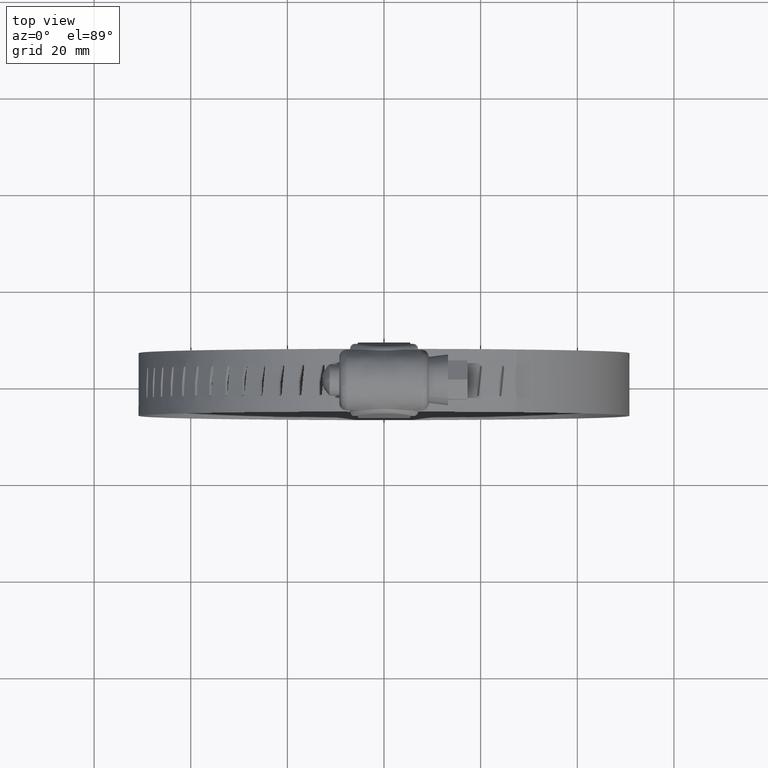
[diagram: clean part render]
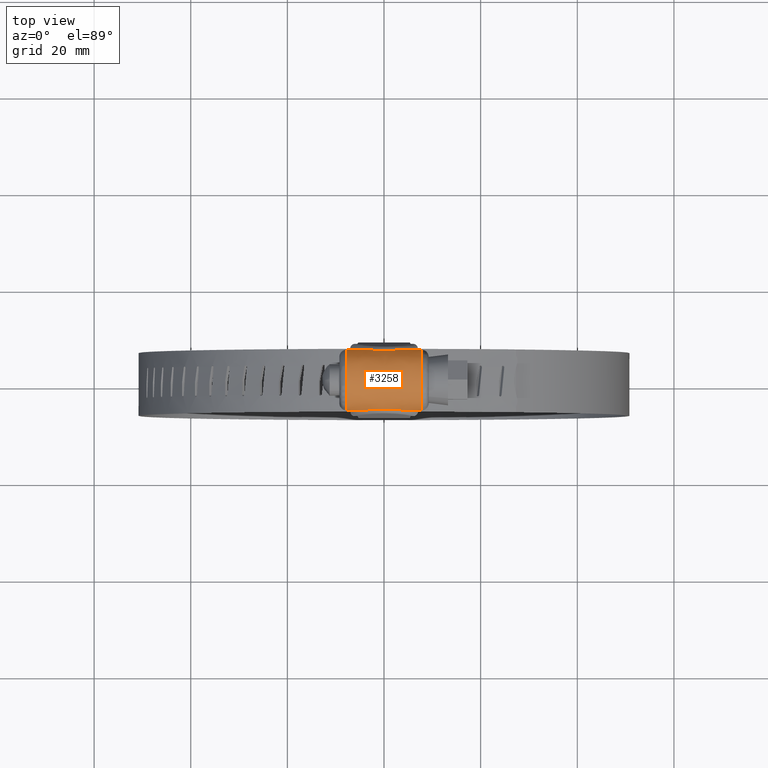
[diagram: same view with one face highlighted and labeled with its STEP entity id]
A machine part, top view. The second image highlights one B-rep face of the part: STEP entity #3258.
In plain terms, the highlighted face is a freeform B-spline surface patch.
Its self-contained STEP definition (entity closure, byte-faithful):
#1588=CARTESIAN_POINT('',(-3.766983245140355,-6.249999633170980,16.577121365332999));
#1589=VERTEX_POINT('',#1588);
#1699=CARTESIAN_POINT('',(3.766983245140355,-6.249999633170980,16.577121365332999));
#1700=VERTEX_POINT('',#1699);
#1708=CARTESIAN_POINT('',(-3.766983245140355,-6.249999633170980,16.577121365332999));
#1709=CARTESIAN_POINT('',(-3.478831496909463,-6.229233364205876,16.739128154655241));
#1710=CARTESIAN_POINT('',(-3.183300914378316,-6.204570008767342,16.882148632117168));
#1711=CARTESIAN_POINT('',(-2.576808892005547,-6.155228093785371,17.130036402120751));
#1712=CARTESIAN_POINT('',(-2.265836634976381,-6.130547265610534,17.234876518080021));
#1713=CARTESIAN_POINT('',(-1.866693869858923,-6.103751019367197,17.340919599546389));
#1714=CARTESIAN_POINT('',(-1.786486061357972,-6.098601892761600,17.360832235081901));
#1715=CARTESIAN_POINT('',(-1.626024433981459,-6.088846631766009,17.397907521513719));
#1716=CARTESIAN_POINT('',(-1.545665445436081,-6.084233341677489,17.415098594033861));
#1717=CARTESIAN_POINT('',(-1.304205280765513,-6.071283367227001,17.462673344400940));
#1718=CARTESIAN_POINT('',(-1.142721123573348,-6.063841070201703,17.489062200122419));
#1719=CARTESIAN_POINT('',(-0.656740159557208,-6.045693866015511,17.552452619586020));
#1720=CARTESIAN_POINT('',(-0.330719706065374,-6.039235105378521,17.573749912531952));
#1721=CARTESIAN_POINT('',(0.161419786626403,-6.039184386857341,17.573920279852860));
#1722=CARTESIAN_POINT('',(0.325985564198005,-6.040757096750824,17.568663909435760));
#1723=CARTESIAN_POINT('',(0.573631993009526,-6.045493593546023,17.552599085312352));
#1724=CARTESIAN_POINT('',(0.656241352251390,-6.047467871330164,17.545878086249040));
#1725=CARTESIAN_POINT('',(0.820475667525163,-6.052146371881373,17.529813216404978));
#1726=CARTESIAN_POINT('',(0.902253417529042,-6.054853191231874,17.520460500731989));
#1727=CARTESIAN_POINT('',(1.309472620170547,-6.070102513587345,17.467179843144940));
#1728=CARTESIAN_POINT('',(1.629917328613110,-6.087864840067938,17.403768142886481));
#1729=CARTESIAN_POINT('',(2.260627271324118,-6.130187882777850,17.236317853900928));
#1730=CARTESIAN_POINT('',(2.570888658853245,-6.154751397064583,17.132263968381999));
#1731=CARTESIAN_POINT('',(3.028839962946760,-6.192001216301294,16.945374784512900));
#1732=CARTESIAN_POINT('',(3.179777303179230,-6.204428908061730,16.878107182095970));
#1733=CARTESIAN_POINT('',(3.476686108309584,-6.228226204638982,16.734530296358798));
#1734=CARTESIAN_POINT('',(3.622917516897374,-6.239617229855899,16.658119055673680));
#1735=CARTESIAN_POINT('',(3.766983245140355,-6.249999633170980,16.577121365332999));
#1736=B_SPLINE_CURVE_WITH_KNOTS('',3,(#1708,#1709,#1710,#1711,#1712,#1713,#1714,#1715,#1716,#1717,#1718,#1719,#1720,#1721,#1722,#1723,#1724,#1725,#1726,#1727,#1728,#1729,#1730,#1731,#1732,#1733,#1734,#1735),.UNSPECIFIED.,.F.,.U.,(4,2,2,2,2,2,2,2,2,2,2,2,2,4),(0.000000039906754,0.125000000000001,0.250000000000001,0.281250000000001,0.312500000000001,0.375000000000001,0.500000000000001,0.562500000000001,0.593750000000001,0.625000000000000,0.750000000000000,0.875000000000000,0.937500000000000,0.999999982435041),.UNSPECIFIED.);
#1737=EDGE_CURVE('',#1589,#1700,#1736,.T.);
#1928=CARTESIAN_POINT('',(-3.767731017053410,6.249999633170980,16.577121365332999));
#1929=VERTEX_POINT('',#1928);
#1937=CARTESIAN_POINT('',(3.767731017053410,6.249999633170980,16.577121365332999));
#1938=VERTEX_POINT('',#1937);
#1939=CARTESIAN_POINT('',(3.767731017053410,6.249999633170980,16.577121365332999));
#1940=CARTESIAN_POINT('',(3.479497733507518,6.229237709105721,16.739094258291651));
#1941=CARTESIAN_POINT('',(3.183884050679524,6.204583222070062,16.882071151559519));
#1942=CARTESIAN_POINT('',(2.577243934754033,6.155257050299552,17.129902017543969));
#1943=CARTESIAN_POINT('',(2.266206147951572,6.130582696073145,17.234727400421061));
#1944=CARTESIAN_POINT('',(1.866991587071622,6.103790234875439,17.340766625409820));
#1945=CARTESIAN_POINT('',(1.786771470837745,6.098641773924828,17.360678763914390));
#1946=CARTESIAN_POINT('',(1.626284023453253,6.088887352445290,17.397754646818960));
#1947=CARTESIAN_POINT('',(1.545912167912042,6.084274283725710,17.414946625872581));
#1948=CARTESIAN_POINT('',(1.304413467685331,6.071324521135703,17.462525250646319));
#1949=CARTESIAN_POINT('',(1.142903704963588,6.063881763437935,17.488918202284239));
#1950=CARTESIAN_POINT('',(0.656845720759579,6.045732683460419,17.552320710697689));
#1951=CARTESIAN_POINT('',(0.330773580215899,6.039272260056391,17.573625094178219));
#1952=CARTESIAN_POINT('',(-0.161444854682112,6.039221514861135,17.573795563976041));
#1953=CARTESIAN_POINT('',(-0.326037165918512,6.040794574774885,17.568537633646770));
#1954=CARTESIAN_POINT('',(-0.573723678317318,6.045531948734165,17.552468569044731));
#1955=CARTESIAN_POINT('',(-0.656346915220894,6.047506583847865,17.545745815254921));
#1956=CARTESIAN_POINT('',(-0.820608736505639,6.052185828560140,17.529677062264259));
#1957=CARTESIAN_POINT('',(-0.902400225254582,6.054893035526168,17.520322214310770));
#1958=CARTESIAN_POINT('',(-1.309688241338812,6.070144131077192,17.467030690373669));
#1959=CARTESIAN_POINT('',(-1.630188360697988,6.087907219618561,17.403609516303838));
#1960=CARTESIAN_POINT('',(-2.261015828429809,6.130224851233542,17.236162525183840));
#1961=CARTESIAN_POINT('',(-2.571339628588592,6.154781890041164,17.132122576332680));
#1962=CARTESIAN_POINT('',(-3.029391561703454,6.192018955972971,16.945279975485011));
#1963=CARTESIAN_POINT('',(-3.180366883374803,6.204442304778198,16.878030458831791));
#1964=CARTESIAN_POINT('',(-3.477353567144340,6.228231820699066,16.734492306269210));
#1965=CARTESIAN_POINT('',(-3.623625442391634,6.239619468304403,16.658101592606808));
#1966=CARTESIAN_POINT('',(-3.767731017053410,6.249999633170980,16.577121365332999));
#1967=B_SPLINE_CURVE_WITH_KNOTS('',3,(#1939,#1940,#1941,#1942,#1943,#1944,#1945,#1946,#1947,#1948,#1949,#1950,#1951,#1952,#1953,#1954,#1955,#1956,#1957,#1958,#1959,#1960,#1961,#1962,#1963,#1964,#1965,#1966),.UNSPECIFIED.,.F.,.U.,(4,2,2,2,2,2,2,2,2,2,2,2,2,4),(0.000000039879375,0.125000000000000,0.250000000000001,0.281250000000000,0.312500000000000,0.375000000000000,0.500000000000000,0.562500000000000,0.593749999999999,0.624999999999999,0.749999999999999,0.875000000000000,0.937500000000000,0.999999982445228),.UNSPECIFIED.);
#1968=EDGE_CURVE('',#1938,#1929,#1967,.T.);
#2472=CARTESIAN_POINT('',(7.750000000000000,6.249999633170980,16.577121365332999));
#2473=VERTEX_POINT('',#2472);
#2530=CARTESIAN_POINT('',(7.750000000000000,-6.249999633170980,16.577121365332999));
#2531=VERTEX_POINT('',#2530);
#2564=CARTESIAN_POINT('',(7.750000000000000,-6.249999633170980,16.577121365332999));
#2565=CARTESIAN_POINT('',(7.749999999999991,-6.174979329673651,17.164473482041981));
#2566=CARTESIAN_POINT('',(7.750000000000017,-5.939836903759789,18.017617101464321));
#2567=CARTESIAN_POINT('',(7.749999999999973,-5.329508724764039,19.198567166294112));
#2568=CARTESIAN_POINT('',(7.750000000000009,-4.635931393957121,20.107515796248730));
#2569=CARTESIAN_POINT('',(7.749999999999992,-3.738391406303754,20.888332446286991));
#2570=CARTESIAN_POINT('',(7.749999999999987,-2.598182592023810,21.573946324623162));
#2571=CARTESIAN_POINT('',(7.749999999999938,-1.281917246314948,22.012152930479459));
#2572=CARTESIAN_POINT('',(7.750000000000088,0.095938851930906,22.113086759726212));
#2573=CARTESIAN_POINT('',(7.749999999999920,1.465158929201574,21.958212182746419));
#2574=CARTESIAN_POINT('',(7.750000000000031,2.731221468893009,21.520904251803440));
#2575=CARTESIAN_POINT('',(7.749999999999995,3.753094367000094,20.866418967908139));
#2576=CARTESIAN_POINT('',(7.749999999999994,4.540316517065647,20.181559178901878));
#2577=CARTESIAN_POINT('',(7.749999999999996,5.140214875169422,19.472991819291050));
#2578=CARTESIAN_POINT('',(7.750000000000002,5.864533686714519,18.246594572626641));
#2579=CARTESIAN_POINT('',(7.749999999999996,6.160161328193227,17.282001789995299));
#2580=CARTESIAN_POINT('',(7.750000000000000,6.249999633170980,16.577121365332999));
#2581=B_SPLINE_CURVE_WITH_KNOTS('',3,(#2564,#2565,#2566,#2567,#2568,#2569,#2570,#2571,#2572,#2573,#2574,#2575,#2576,#2577,#2578,#2579,#2580),.UNSPECIFIED.,.F.,.U.,(4,1,1,1,1,1,1,1,1,1,1,1,1,1,4),(0.000000336463508,1.776265687842443,2.628851984929788,3.978851618924896,5.186732710773271,6.181470939118064,7.957729181301243,9.307669690591318,10.302344499837130,12.078652891284550,13.286551198518289,13.926018491548410,15.204939234589540,16.057585039263820,18.189077700221858),.UNSPECIFIED.);
#2582=EDGE_CURVE('',#2531,#2473,#2581,.T.);
#2667=CARTESIAN_POINT('',(-7.749999999999810,6.249999633170980,16.577121365332999));
#2668=VERTEX_POINT('',#2667);
#2725=CARTESIAN_POINT('',(-7.750000000000000,-6.249999633170980,16.577121365332999));
#2726=VERTEX_POINT('',#2725);
#2739=CARTESIAN_POINT('',(-7.749999999999810,6.249999633170980,16.577121365332999));
#2740=CARTESIAN_POINT('',(-7.749999999999809,6.174979329673652,17.164473482041970));
#2741=CARTESIAN_POINT('',(-7.749999999999861,5.939836903759786,18.017617101464339));
#2742=CARTESIAN_POINT('',(-7.749999999999846,5.329508724764041,19.198567166294101));
#2743=CARTESIAN_POINT('',(-7.749999999999910,4.635931393957120,20.107515796248730));
#2744=CARTESIAN_POINT('',(-7.749999999999924,3.738391406303754,20.888332446286999));
#2745=CARTESIAN_POINT('',(-7.749999999999948,2.598182592023810,21.573946324623162));
#2746=CARTESIAN_POINT('',(-7.749999999999920,1.281917246314948,22.012152930479459));
#2747=CARTESIAN_POINT('',(-7.750000000000100,-0.095938851930906,22.113086759726212));
#2748=CARTESIAN_POINT('',(-7.749999999999948,-1.465158929201574,21.958212182746419));
#2749=CARTESIAN_POINT('',(-7.750000000000068,-2.731221468893010,21.520904251803440));
#2750=CARTESIAN_POINT('',(-7.750000000000036,-3.753094367000093,20.866418967908139));
#2751=CARTESIAN_POINT('',(-7.750000000000033,-4.540316517065648,20.181559178901878));
#2752=CARTESIAN_POINT('',(-7.750000000000044,-5.140214875169423,19.472991819291050));
#2753=CARTESIAN_POINT('',(-7.750000000000017,-5.864533686714520,18.246594572626631));
#2754=CARTESIAN_POINT('',(-7.750000000000013,-6.160161328193225,17.282001789995331));
#2755=CARTESIAN_POINT('',(-7.750000000000000,-6.249999633170980,16.577121365332999));
#2756=B_SPLINE_CURVE_WITH_KNOTS('',3,(#2739,#2740,#2741,#2742,#2743,#2744,#2745,#2746,#2747,#2748,#2749,#2750,#2751,#2752,#2753,#2754,#2755),.UNSPECIFIED.,.F.,.U.,(4,1,1,1,1,1,1,1,1,1,1,1,1,1,4),(0.000000336463508,1.776265687842443,2.628851984929788,3.978851618924896,5.186732710773271,6.181470939118064,7.957729181301243,9.307669690591318,10.302344499837130,12.078652891284550,13.286551198518289,13.926018491548410,15.204939234589540,16.057585039263820,18.189077700221858),.UNSPECIFIED.);
#2757=EDGE_CURVE('',#2668,#2726,#2756,.T.);
#3190=CARTESIAN_POINT('',(7.750000000000000,-6.249999633170980,16.577121365332999));
#3191=CARTESIAN_POINT('',(3.766983245140355,-6.249999633170980,16.577121365332999));
#3192=QUASI_UNIFORM_CURVE('',1,(#3190,#3191),.UNSPECIFIED.,.F.,.U.);
#3193=EDGE_CURVE('',#2531,#1700,#3192,.T.);
#3212=CARTESIAN_POINT('',(-3.766983245140355,-6.249999633170980,16.577121365332999));
#3213=CARTESIAN_POINT('',(-7.750000000000000,-6.249999633170980,16.577121365332999));
#3214=QUASI_UNIFORM_CURVE('',1,(#3212,#3213),.UNSPECIFIED.,.F.,.U.);
#3215=EDGE_CURVE('',#1589,#2726,#3214,.T.);
#3222=CARTESIAN_POINT('',(8.137500000000001,6.256752797267127,16.522550016851341));
#3223=CARTESIAN_POINT('',(-8.147187500000040,6.256752797267127,16.522550016851341));
#3224=CARTESIAN_POINT('',(8.137500000000001,5.578620881440008,22.205784116358405));
#3225=CARTESIAN_POINT('',(-8.147187500000040,5.578620881440008,22.205784116358405));
#3226=CARTESIAN_POINT('',(8.137500000000001,-0.143444799420466,22.075488034368480));
#3227=CARTESIAN_POINT('',(-8.147187500000040,-0.143444799420466,22.075488034368480));
#3228=CARTESIAN_POINT('',(8.137500000000001,-5.865510480280938,21.945191952378561));
#3229=CARTESIAN_POINT('',(-8.147187500000040,-5.865510480280938,21.945191952378561));
#3230=CARTESIAN_POINT('',(8.137500000000001,-6.284249946758260,16.236981200813990));
#3231=CARTESIAN_POINT('',(-8.147187500000040,-6.284249946758260,16.236981200813990));
#3239=(BOUNDED_SURFACE()B_SPLINE_SURFACE(1,2,((#3222,#3224,#3226,#3228,#3230),(#3223,#3225,#3227,#3229,#3231)),.UNSPECIFIED.,.F.,.F.,.U.)B_SPLINE_SURFACE_WITH_KNOTS((2,2),(3,2,3),(0.0,16.284687500000040),(0.0,9.738261264178698,19.476522528357400),.UNSPECIFIED.)GEOMETRIC_REPRESENTATION_ITEM()RATIONAL_B_SPLINE_SURFACE(((1.0,0.740218127486832,1.0,0.740218127486832,1.0),(1.0,0.740218127486832,1.0,0.740218127486832,1.0)))REPRESENTATION_ITEM('')SURFACE());
#3240=CARTESIAN_POINT('',(7.750000000000000,6.249999633170980,16.577121365332999));
#3241=CARTESIAN_POINT('',(3.767731017053410,6.249999633170980,16.577121365332999));
#3242=QUASI_UNIFORM_CURVE('',1,(#3240,#3241),.UNSPECIFIED.,.F.,.U.);
#3243=EDGE_CURVE('',#2473,#1938,#3242,.T.);
#3244=ORIENTED_EDGE('',*,*,#3243,.T.);
#3245=ORIENTED_EDGE('',*,*,#1968,.T.);
#3246=CARTESIAN_POINT('',(-3.767731017053410,6.249999633170980,16.577121365332999));
#3247=CARTESIAN_POINT('',(-7.749999999999810,6.249999633170980,16.577121365332999));
#3248=QUASI_UNIFORM_CURVE('',1,(#3246,#3247),.UNSPECIFIED.,.F.,.U.);
#3249=EDGE_CURVE('',#1929,#2668,#3248,.T.);
#3250=ORIENTED_EDGE('',*,*,#3249,.T.);
#3251=ORIENTED_EDGE('',*,*,#2757,.T.);
#3252=ORIENTED_EDGE('',*,*,#3215,.F.);
#3253=ORIENTED_EDGE('',*,*,#1737,.T.);
#3254=ORIENTED_EDGE('',*,*,#3193,.F.);
#3255=ORIENTED_EDGE('',*,*,#2582,.T.);
#3256=EDGE_LOOP('',(#3244,#3245,#3250,#3251,#3252,#3253,#3254,#3255));
#3257=FACE_OUTER_BOUND('',#3256,.T.);
#3258=ADVANCED_FACE('',(#3257),#3239,.T.);